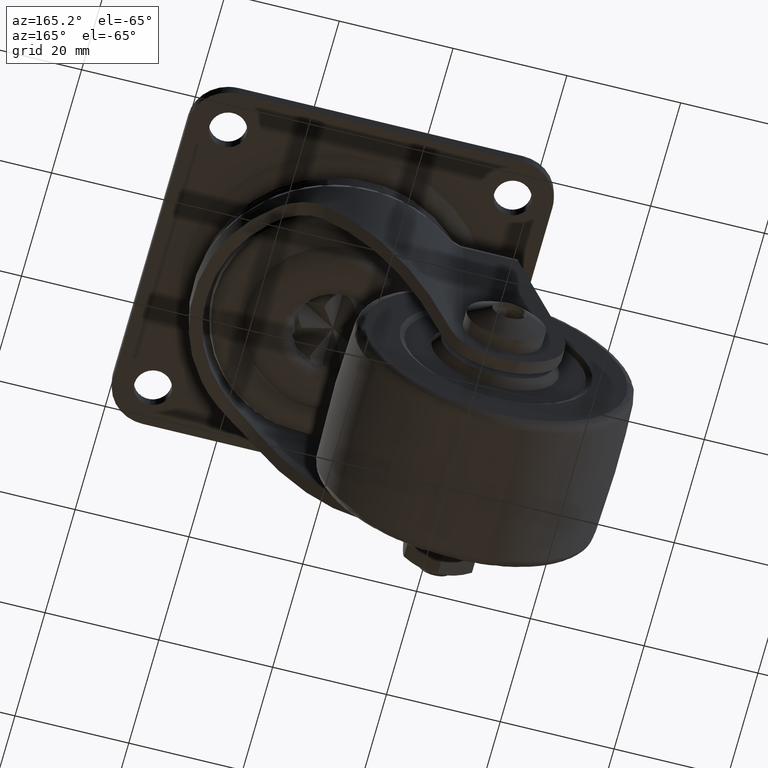
[diagram: clean part render]
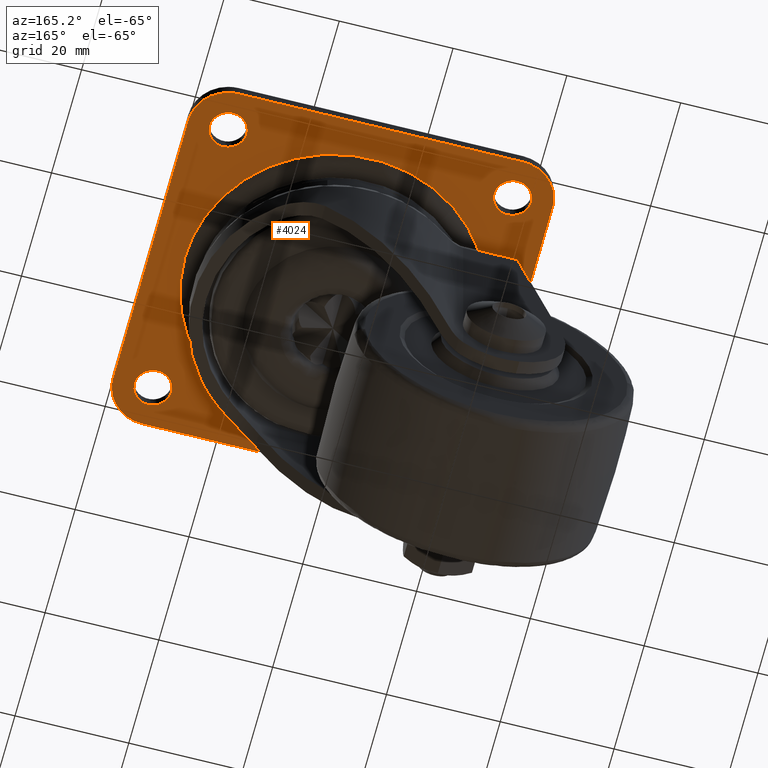
[diagram: same view with one face highlighted and labeled with its STEP entity id]
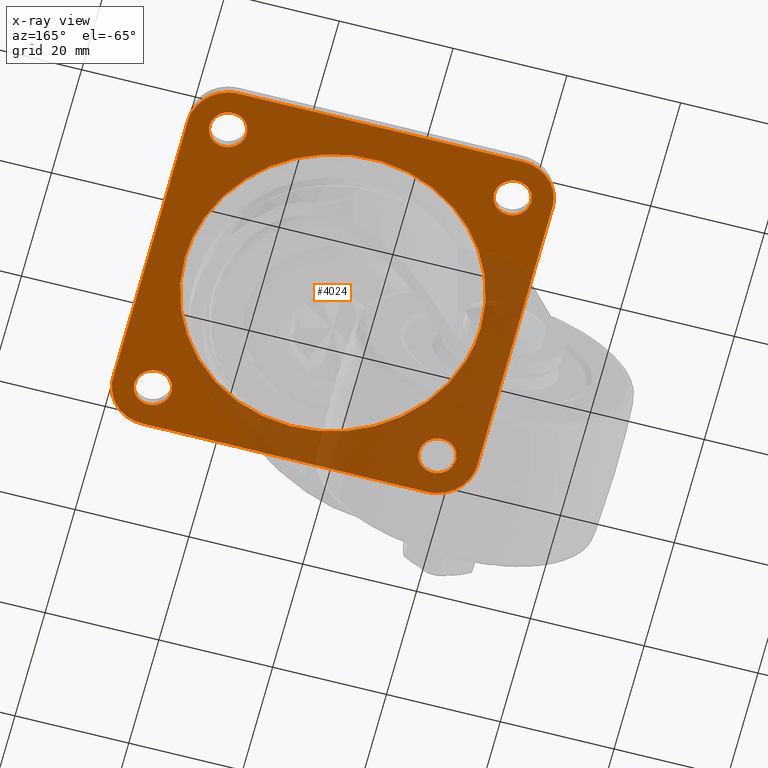
[diagram: x-ray of the same camera — body ghosted, the highlighted face saturated]
A machine part, auxiliary view. The second image highlights one B-rep face of the part: STEP entity #4024.
The next image is the same camera in x-ray: the body ghosted, the highlighted face saturated — about 35% of this face is hidden behind the body in this view.
In plain terms, the highlighted face is a freeform B-spline surface patch.
Its self-contained STEP definition (entity closure, byte-faithful):
#2181=CARTESIAN_POINT('',(-24.801592246341560,28.243938094860660,-2.300000000000080));
#2182=VERTEX_POINT('',#2181);
#2188=CARTESIAN_POINT('',(-21.750000000000000,25.0,-2.300000000000080));
#2189=VERTEX_POINT('',#2188);
#2190=CARTESIAN_POINT('',(-21.750000000000000,25.0,-2.300000000000080));
#2191=CARTESIAN_POINT('',(-21.750000000000007,28.057294717122197,-2.300000000000080));
#2192=CARTESIAN_POINT('',(-24.801592246341563,28.243938094860660,-2.300000000000080));
#2200=(BOUNDED_CURVE()B_SPLINE_CURVE(2,(#2190,#2191,#2192),.UNSPECIFIED.,.F.,.U.)B_SPLINE_CURVE_WITH_KNOTS((3,3),(0.500000000000000,0.739332962223868),.UNSPECIFIED.)CURVE()GEOMETRIC_REPRESENTATION_ITEM()RATIONAL_B_SPLINE_CURVE((1.0,0.719603993304371,0.976072041634410))REPRESENTATION_ITEM(''));
#2201=EDGE_CURVE('',#2189,#2182,#2200,.T.);
#2203=CARTESIAN_POINT('',(-25.383611262661852,21.772719039321348,-2.300000000000080));
#2204=VERTEX_POINT('',#2203);
#2205=CARTESIAN_POINT('',(-25.383611262661855,21.772719039321348,-2.300000000000080));
#2206=CARTESIAN_POINT('',(-25.192478388896387,21.750000000000004,-2.300000000000079));
#2207=CARTESIAN_POINT('',(-25.0,21.750000000000000,-2.300000000000080));
#2208=CARTESIAN_POINT('',(-21.750000000000004,21.750000000000004,-2.300000000000081));
#2209=CARTESIAN_POINT('',(-21.750000000000000,25.0,-2.300000000000080));
#2217=(BOUNDED_CURVE()B_SPLINE_CURVE(2,(#2205,#2206,#2207,#2208,#2209),.UNSPECIFIED.,.F.,.U.)B_SPLINE_CURVE_WITH_KNOTS((3,2,3),(0.229562473512776,0.250000000000000,0.500000000000000),.UNSPECIFIED.)CURVE()GEOMETRIC_REPRESENTATION_ITEM()RATIONAL_B_SPLINE_CURVE((0.956026754182264,0.976055948330287,1.0,0.707106781186547,1.0))REPRESENTATION_ITEM(''));
#2218=EDGE_CURVE('',#2204,#2189,#2217,.T.);
#2262=CARTESIAN_POINT('',(-28.250000000000000,25.0,-2.300000000000080));
#2263=VERTEX_POINT('',#2262);
#2264=CARTESIAN_POINT('',(-28.250000000000000,25.0,-2.300000000000080));
#2265=CARTESIAN_POINT('',(-28.250000000000000,22.113432790707396,-2.300000000000081));
#2266=CARTESIAN_POINT('',(-25.383611262661855,21.772719039321341,-2.300000000000080));
#2274=(BOUNDED_CURVE()B_SPLINE_CURVE(2,(#2264,#2265,#2266),.UNSPECIFIED.,.F.,.U.)B_SPLINE_CURVE_WITH_KNOTS((3,3),(0.0,0.229562473512776),.UNSPECIFIED.)CURVE()GEOMETRIC_REPRESENTATION_ITEM()RATIONAL_B_SPLINE_CURVE((1.0,0.731050832856260,0.956026754182264))REPRESENTATION_ITEM(''));
#2275=EDGE_CURVE('',#2263,#2204,#2274,.T.);
#2277=CARTESIAN_POINT('',(-24.801592246341567,28.243938094860660,-2.300000000000080));
#2278=CARTESIAN_POINT('',(-24.900703519108951,28.250000000000004,-2.300000000000079));
#2279=CARTESIAN_POINT('',(-25.0,28.250000000000000,-2.300000000000080));
#2280=CARTESIAN_POINT('',(-28.250000000000004,28.250000000000004,-2.300000000000081));
#2281=CARTESIAN_POINT('',(-28.250000000000000,25.0,-2.300000000000080));
#2289=(BOUNDED_CURVE()B_SPLINE_CURVE(2,(#2277,#2278,#2279,#2280,#2281),.UNSPECIFIED.,.F.,.U.)B_SPLINE_CURVE_WITH_KNOTS((3,2,3),(0.739332962223867,0.750000000000000,1.0),.UNSPECIFIED.)CURVE()GEOMETRIC_REPRESENTATION_ITEM()RATIONAL_B_SPLINE_CURVE((0.976072041634408,0.987502787882175,1.0,0.707106781186547,1.0))REPRESENTATION_ITEM(''));
#2290=EDGE_CURVE('',#2182,#2263,#2289,.T.);
#2367=CARTESIAN_POINT('',(25.198407753658440,28.243938094860660,-2.300000000000080));
#2368=VERTEX_POINT('',#2367);
#2374=CARTESIAN_POINT('',(28.250000000000000,25.0,-2.300000000000080));
#2375=VERTEX_POINT('',#2374);
#2376=CARTESIAN_POINT('',(28.250000000000000,25.0,-2.300000000000080));
#2377=CARTESIAN_POINT('',(28.249999999999989,28.057294717122197,-2.300000000000080));
#2378=CARTESIAN_POINT('',(25.198407753658440,28.243938094860660,-2.300000000000080));
#2386=(BOUNDED_CURVE()B_SPLINE_CURVE(2,(#2376,#2377,#2378),.UNSPECIFIED.,.F.,.U.)B_SPLINE_CURVE_WITH_KNOTS((3,3),(0.500000000000000,0.739332962223868),.UNSPECIFIED.)CURVE()GEOMETRIC_REPRESENTATION_ITEM()RATIONAL_B_SPLINE_CURVE((1.0,0.719603993304371,0.976072041634410))REPRESENTATION_ITEM(''));
#2387=EDGE_CURVE('',#2375,#2368,#2386,.T.);
#2389=CARTESIAN_POINT('',(24.616388737338141,21.772719039321348,-2.300000000000080));
#2390=VERTEX_POINT('',#2389);
#2391=CARTESIAN_POINT('',(24.616388737338148,21.772719039321352,-2.300000000000080));
#2392=CARTESIAN_POINT('',(24.807521611103617,21.750000000000007,-2.300000000000080));
#2393=CARTESIAN_POINT('',(25.0,21.750000000000000,-2.300000000000080));
#2394=CARTESIAN_POINT('',(28.250000000000004,21.750000000000004,-2.300000000000081));
#2395=CARTESIAN_POINT('',(28.250000000000000,25.0,-2.300000000000080));
#2403=(BOUNDED_CURVE()B_SPLINE_CURVE(2,(#2391,#2392,#2393,#2394,#2395),.UNSPECIFIED.,.F.,.U.)B_SPLINE_CURVE_WITH_KNOTS((3,2,3),(0.229562473512775,0.250000000000000,0.500000000000000),.UNSPECIFIED.)CURVE()GEOMETRIC_REPRESENTATION_ITEM()RATIONAL_B_SPLINE_CURVE((0.956026754182262,0.976055948330286,1.0,0.707106781186547,1.0))REPRESENTATION_ITEM(''));
#2404=EDGE_CURVE('',#2390,#2375,#2403,.T.);
#2448=CARTESIAN_POINT('',(21.750000000000000,25.0,-2.300000000000080));
#2449=VERTEX_POINT('',#2448);
#2450=CARTESIAN_POINT('',(21.750000000000000,25.0,-2.300000000000080));
#2451=CARTESIAN_POINT('',(21.750000000000000,22.113432790707400,-2.300000000000080));
#2452=CARTESIAN_POINT('',(24.616388737338141,21.772719039321345,-2.300000000000079));
#2460=(BOUNDED_CURVE()B_SPLINE_CURVE(2,(#2450,#2451,#2452),.UNSPECIFIED.,.F.,.U.)B_SPLINE_CURVE_WITH_KNOTS((3,3),(0.0,0.229562473512775),.UNSPECIFIED.)CURVE()GEOMETRIC_REPRESENTATION_ITEM()RATIONAL_B_SPLINE_CURVE((1.0,0.731050832856261,0.956026754182263))REPRESENTATION_ITEM(''));
#2461=EDGE_CURVE('',#2449,#2390,#2460,.T.);
#2463=CARTESIAN_POINT('',(25.198407753658440,28.243938094860663,-2.300000000000080));
#2464=CARTESIAN_POINT('',(25.099296480891041,28.250000000000004,-2.300000000000080));
#2465=CARTESIAN_POINT('',(25.0,28.250000000000000,-2.300000000000080));
#2466=CARTESIAN_POINT('',(21.750000000000004,28.250000000000004,-2.300000000000081));
#2467=CARTESIAN_POINT('',(21.750000000000000,25.0,-2.300000000000080));
#2475=(BOUNDED_CURVE()B_SPLINE_CURVE(2,(#2463,#2464,#2465,#2466,#2467),.UNSPECIFIED.,.F.,.U.)B_SPLINE_CURVE_WITH_KNOTS((3,2,3),(0.739332962223868,0.750000000000000,1.0),.UNSPECIFIED.)CURVE()GEOMETRIC_REPRESENTATION_ITEM()RATIONAL_B_SPLINE_CURVE((0.976072041634408,0.987502787882175,1.0,0.707106781186547,1.0))REPRESENTATION_ITEM(''));
#2476=EDGE_CURVE('',#2368,#2449,#2475,.T.);
#2553=CARTESIAN_POINT('',(-24.801592246341560,-21.756061905139340,-2.300000000000080));
#2554=VERTEX_POINT('',#2553);
#2560=CARTESIAN_POINT('',(-21.750000000000000,-25.0,-2.300000000000080));
#2561=VERTEX_POINT('',#2560);
#2562=CARTESIAN_POINT('',(-21.750000000000000,-25.0,-2.300000000000080));
#2563=CARTESIAN_POINT('',(-21.750000000000007,-21.942705282877807,-2.300000000000080));
#2564=CARTESIAN_POINT('',(-24.801592246341563,-21.756061905139344,-2.300000000000080));
#2572=(BOUNDED_CURVE()B_SPLINE_CURVE(2,(#2562,#2563,#2564),.UNSPECIFIED.,.F.,.U.)B_SPLINE_CURVE_WITH_KNOTS((3,3),(0.500000000000000,0.739332962223868),.UNSPECIFIED.)CURVE()GEOMETRIC_REPRESENTATION_ITEM()RATIONAL_B_SPLINE_CURVE((1.0,0.719603993304371,0.976072041634410))REPRESENTATION_ITEM(''));
#2573=EDGE_CURVE('',#2561,#2554,#2572,.T.);
#2575=CARTESIAN_POINT('',(-25.383611262661852,-28.227280960678659,-2.300000000000080));
#2576=VERTEX_POINT('',#2575);
#2577=CARTESIAN_POINT('',(-25.383611262661852,-28.227280960678666,-2.300000000000080));
#2578=CARTESIAN_POINT('',(-25.192478388896394,-28.250000000000004,-2.300000000000079));
#2579=CARTESIAN_POINT('',(-25.0,-28.250000000000000,-2.300000000000080));
#2580=CARTESIAN_POINT('',(-21.750000000000004,-28.250000000000004,-2.300000000000081));
#2581=CARTESIAN_POINT('',(-21.750000000000000,-25.0,-2.300000000000080));
#2589=(BOUNDED_CURVE()B_SPLINE_CURVE(2,(#2577,#2578,#2579,#2580,#2581),.UNSPECIFIED.,.F.,.U.)B_SPLINE_CURVE_WITH_KNOTS((3,2,3),(0.229562473512776,0.250000000000000,0.500000000000000),.UNSPECIFIED.)CURVE()GEOMETRIC_REPRESENTATION_ITEM()RATIONAL_B_SPLINE_CURVE((0.956026754182263,0.976055948330287,1.0,0.707106781186547,1.0))REPRESENTATION_ITEM(''));
#2590=EDGE_CURVE('',#2576,#2561,#2589,.T.);
#2634=CARTESIAN_POINT('',(-28.250000000000000,-25.0,-2.300000000000080));
#2635=VERTEX_POINT('',#2634);
#2636=CARTESIAN_POINT('',(-28.250000000000000,-25.0,-2.300000000000080));
#2637=CARTESIAN_POINT('',(-28.250000000000000,-27.886567209292604,-2.300000000000080));
#2638=CARTESIAN_POINT('',(-25.383611262661855,-28.227280960678655,-2.300000000000079));
#2646=(BOUNDED_CURVE()B_SPLINE_CURVE(2,(#2636,#2637,#2638),.UNSPECIFIED.,.F.,.U.)B_SPLINE_CURVE_WITH_KNOTS((3,3),(0.0,0.229562473512776),.UNSPECIFIED.)CURVE()GEOMETRIC_REPRESENTATION_ITEM()RATIONAL_B_SPLINE_CURVE((1.0,0.731050832856261,0.956026754182263))REPRESENTATION_ITEM(''));
#2647=EDGE_CURVE('',#2635,#2576,#2646,.T.);
#2649=CARTESIAN_POINT('',(-24.801592246341567,-21.756061905139340,-2.300000000000080));
#2650=CARTESIAN_POINT('',(-24.900703519108951,-21.750000000000000,-2.300000000000079));
#2651=CARTESIAN_POINT('',(-25.0,-21.750000000000000,-2.300000000000080));
#2652=CARTESIAN_POINT('',(-28.250000000000004,-21.750000000000004,-2.300000000000081));
#2653=CARTESIAN_POINT('',(-28.250000000000000,-25.0,-2.300000000000080));
#2661=(BOUNDED_CURVE()B_SPLINE_CURVE(2,(#2649,#2650,#2651,#2652,#2653),.UNSPECIFIED.,.F.,.U.)B_SPLINE_CURVE_WITH_KNOTS((3,2,3),(0.739332962223867,0.750000000000000,1.0),.UNSPECIFIED.)CURVE()GEOMETRIC_REPRESENTATION_ITEM()RATIONAL_B_SPLINE_CURVE((0.976072041634408,0.987502787882175,1.0,0.707106781186547,1.0))REPRESENTATION_ITEM(''));
#2662=EDGE_CURVE('',#2554,#2635,#2661,.T.);
#2739=CARTESIAN_POINT('',(25.198407753658440,-21.756061905139340,-2.300000000000080));
#2740=VERTEX_POINT('',#2739);
#2746=CARTESIAN_POINT('',(28.250000000000000,-25.0,-2.300000000000080));
#2747=VERTEX_POINT('',#2746);
#2748=CARTESIAN_POINT('',(28.250000000000000,-25.0,-2.300000000000080));
#2749=CARTESIAN_POINT('',(28.249999999999989,-21.942705282877807,-2.300000000000080));
#2750=CARTESIAN_POINT('',(25.198407753658440,-21.756061905139344,-2.300000000000080));
#2758=(BOUNDED_CURVE()B_SPLINE_CURVE(2,(#2748,#2749,#2750),.UNSPECIFIED.,.F.,.U.)B_SPLINE_CURVE_WITH_KNOTS((3,3),(0.500000000000000,0.739332962223868),.UNSPECIFIED.)CURVE()GEOMETRIC_REPRESENTATION_ITEM()RATIONAL_B_SPLINE_CURVE((1.0,0.719603993304371,0.976072041634410))REPRESENTATION_ITEM(''));
#2759=EDGE_CURVE('',#2747,#2740,#2758,.T.);
#2761=CARTESIAN_POINT('',(24.616388737338148,-28.227280960678659,-2.300000000000080));
#2762=VERTEX_POINT('',#2761);
#2763=CARTESIAN_POINT('',(24.616388737338148,-28.227280960678655,-2.300000000000079));
#2764=CARTESIAN_POINT('',(24.807521611103617,-28.250000000000004,-2.300000000000079));
#2765=CARTESIAN_POINT('',(25.0,-28.250000000000000,-2.300000000000080));
#2766=CARTESIAN_POINT('',(28.250000000000004,-28.250000000000004,-2.300000000000081));
#2767=CARTESIAN_POINT('',(28.250000000000000,-25.0,-2.300000000000080));
#2775=(BOUNDED_CURVE()B_SPLINE_CURVE(2,(#2763,#2764,#2765,#2766,#2767),.UNSPECIFIED.,.F.,.U.)B_SPLINE_CURVE_WITH_KNOTS((3,2,3),(0.229562473512776,0.250000000000000,0.500000000000000),.UNSPECIFIED.)CURVE()GEOMETRIC_REPRESENTATION_ITEM()RATIONAL_B_SPLINE_CURVE((0.956026754182263,0.976055948330287,1.0,0.707106781186547,1.0))REPRESENTATION_ITEM(''));
#2776=EDGE_CURVE('',#2762,#2747,#2775,.T.);
#2820=CARTESIAN_POINT('',(21.750000000000000,-25.0,-2.300000000000080));
#2821=VERTEX_POINT('',#2820);
#2822=CARTESIAN_POINT('',(21.750000000000000,-25.0,-2.300000000000080));
#2823=CARTESIAN_POINT('',(21.750000000000007,-27.886567209292615,-2.300000000000081));
#2824=CARTESIAN_POINT('',(24.616388737338148,-28.227280960678655,-2.300000000000079));
#2832=(BOUNDED_CURVE()B_SPLINE_CURVE(2,(#2822,#2823,#2824),.UNSPECIFIED.,.F.,.U.)B_SPLINE_CURVE_WITH_KNOTS((3,3),(0.0,0.229562473512776),.UNSPECIFIED.)CURVE()GEOMETRIC_REPRESENTATION_ITEM()RATIONAL_B_SPLINE_CURVE((1.0,0.731050832856261,0.956026754182263))REPRESENTATION_ITEM(''));
#2833=EDGE_CURVE('',#2821,#2762,#2832,.T.);
#2835=CARTESIAN_POINT('',(25.198407753658440,-21.756061905139337,-2.300000000000080));
#2836=CARTESIAN_POINT('',(25.099296480891045,-21.750000000000007,-2.300000000000080));
#2837=CARTESIAN_POINT('',(25.0,-21.750000000000000,-2.300000000000080));
#2838=CARTESIAN_POINT('',(21.750000000000004,-21.750000000000004,-2.300000000000081));
#2839=CARTESIAN_POINT('',(21.750000000000000,-25.0,-2.300000000000080));
#2847=(BOUNDED_CURVE()B_SPLINE_CURVE(2,(#2835,#2836,#2837,#2838,#2839),.UNSPECIFIED.,.F.,.U.)B_SPLINE_CURVE_WITH_KNOTS((3,2,3),(0.739332962223867,0.750000000000000,1.0),.UNSPECIFIED.)CURVE()GEOMETRIC_REPRESENTATION_ITEM()RATIONAL_B_SPLINE_CURVE((0.976072041634408,0.987502787882175,1.0,0.707106781186547,1.0))REPRESENTATION_ITEM(''));
#2848=EDGE_CURVE('',#2740,#2821,#2847,.T.);
#3557=CARTESIAN_POINT('',(19.705968120511720,16.960979347694160,-2.300000000006841));
#3558=VERTEX_POINT('',#3557);
#3572=CARTESIAN_POINT('',(26.0,0.0,-2.300000000000095));
#3573=VERTEX_POINT('',#3572);
#3574=CARTESIAN_POINT('',(19.705968120511724,16.960979347694160,-2.300000000006842));
#3575=CARTESIAN_POINT('',(26.000000000000007,9.648312489026063,-2.300000000000095));
#3576=CARTESIAN_POINT('',(26.0,0.0,-2.300000000000095));
#3584=(BOUNDED_CURVE()B_SPLINE_CURVE(2,(#3574,#3575,#3576),.UNSPECIFIED.,.F.,.U.)B_SPLINE_CURVE_WITH_KNOTS((3,3),(0.386280135075512,0.500000000000000),.UNSPECIFIED.)CURVE()GEOMETRIC_REPRESENTATION_ITEM()RATIONAL_B_SPLINE_CURVE((0.854745971619596,0.866768890876942,1.0))REPRESENTATION_ITEM(''));
#3585=EDGE_CURVE('',#3558,#3573,#3584,.T.);
#3587=CARTESIAN_POINT('',(-26.0,0.0,-2.300000000000095));
#3588=VERTEX_POINT('',#3587);
#3589=CARTESIAN_POINT('',(26.0,0.0,-2.300000000000095));
#3590=CARTESIAN_POINT('',(26.000000000000007,-26.000000000000007,-2.300000000000094));
#3591=CARTESIAN_POINT('',(0.0,-26.0,-2.300000000000095));
#3592=CARTESIAN_POINT('',(-26.000000000000007,-26.000000000000007,-2.300000000000094));
#3593=CARTESIAN_POINT('',(-26.0,0.0,-2.300000000000095));
#3601=(BOUNDED_CURVE()B_SPLINE_CURVE(2,(#3589,#3590,#3591,#3592,#3593),.UNSPECIFIED.,.F.,.U.)B_SPLINE_CURVE_WITH_KNOTS((3,2,3),(0.500000000000000,0.750000000000000,1.0),.UNSPECIFIED.)CURVE()GEOMETRIC_REPRESENTATION_ITEM()RATIONAL_B_SPLINE_CURVE((1.0,0.707106781186547,1.0,0.707106781186547,1.0))REPRESENTATION_ITEM(''));
#3602=EDGE_CURVE('',#3573,#3588,#3601,.T.);
#3604=CARTESIAN_POINT('',(-15.806187739958229,20.643750364663688,-2.300000000153583));
#3605=VERTEX_POINT('',#3604);
#3606=CARTESIAN_POINT('',(-26.0,0.0,-2.300000000000095));
#3607=CARTESIAN_POINT('',(-25.999999999999996,12.838709734112415,-2.300000000000095));
#3608=CARTESIAN_POINT('',(-15.806187739958229,20.643750364663688,-2.300000000153583));
#3616=(BOUNDED_CURVE()B_SPLINE_CURVE(2,(#3606,#3607,#3608),.UNSPECIFIED.,.F.,.U.)B_SPLINE_CURVE_WITH_KNOTS((3,3),(0.0,0.144938183777107),.UNSPECIFIED.)CURVE()GEOMETRIC_REPRESENTATION_ITEM()RATIONAL_B_SPLINE_CURVE((1.0,0.830194355298190,0.857279284501828))REPRESENTATION_ITEM(''));
#3617=EDGE_CURVE('',#3588,#3605,#3616,.T.);
#3700=CARTESIAN_POINT('',(-15.806187739958229,20.643750364663688,-2.300000000153583));
#3701=CARTESIAN_POINT('',(-8.810631178422627,26.0,-2.300000000000095));
#3702=CARTESIAN_POINT('',(0.0,26.0,-2.300000000000095));
#3703=CARTESIAN_POINT('',(11.926058924000907,25.999999999999996,-2.300000000000094));
#3704=CARTESIAN_POINT('',(19.705968120511724,16.960979347694160,-2.300000000006842));
#3712=(BOUNDED_CURVE()B_SPLINE_CURVE(2,(#3700,#3701,#3702,#3703,#3704),.UNSPECIFIED.,.F.,.U.)B_SPLINE_CURVE_WITH_KNOTS((3,2,3),(0.144938183777107,0.250000000000000,0.386280135075512),.UNSPECIFIED.)CURVE()GEOMETRIC_REPRESENTATION_ITEM()RATIONAL_B_SPLINE_CURVE((0.857279284501828,0.876912425888358,1.0,0.840337890309605,0.854745971619596))REPRESENTATION_ITEM(''));
#3713=EDGE_CURVE('',#3605,#3558,#3712,.T.);
#3899=CARTESIAN_POINT('',(-35.196799875955577,35.196799875955577,-2.300000000000095));
#3900=CARTESIAN_POINT('',(35.196801592569351,35.196799875955577,-2.300000000000095));
#3901=CARTESIAN_POINT('',(-35.196799875955577,-35.196801592569351,-2.300000000000095));
#3902=CARTESIAN_POINT('',(35.196801592569351,-35.196801592569351,-2.300000000000095));
#3903=B_SPLINE_SURFACE_WITH_KNOTS('',1,1,((#3899,#3901),(#3900,#3902)),.UNSPECIFIED.,.F.,.F.,.U.,(2,2),(2,2),(0.0,70.393601468524935),(0.0,70.393601468524935),.UNSPECIFIED.);
#3904=CARTESIAN_POINT('',(25.0,32.0,-2.300000000000080));
#3905=VERTEX_POINT('',#3904);
#3906=CARTESIAN_POINT('',(-25.0,32.0,-2.300000000000080));
#3907=VERTEX_POINT('',#3906);
#3908=CARTESIAN_POINT('',(25.0,32.0,-2.300000000000080));
#3909=CARTESIAN_POINT('',(-25.0,32.0,-2.300000000000080));
#3910=QUASI_UNIFORM_CURVE('',1,(#3908,#3909),.UNSPECIFIED.,.F.,.U.);
#3911=EDGE_CURVE('',#3905,#3907,#3910,.T.);
#3912=ORIENTED_EDGE('',*,*,#3911,.F.);
#3913=CARTESIAN_POINT('',(32.0,25.0,-2.300000000000080));
#3914=VERTEX_POINT('',#3913);
#3915=CARTESIAN_POINT('',(32.0,25.0,-2.300000000000080));
#3916=CARTESIAN_POINT('',(32.0,32.0,-2.300000000000081));
#3917=CARTESIAN_POINT('',(25.0,32.0,-2.300000000000080));
#3925=(BOUNDED_CURVE()B_SPLINE_CURVE(2,(#3915,#3916,#3917),.UNSPECIFIED.,.F.,.U.)CURVE()GEOMETRIC_REPRESENTATION_ITEM()QUASI_UNIFORM_CURVE()RATIONAL_B_SPLINE_CURVE((1.0,0.707106781186547,1.0))REPRESENTATION_ITEM(''));
#3926=EDGE_CURVE('',#3914,#3905,#3925,.T.);
#3927=ORIENTED_EDGE('',*,*,#3926,.F.);
#3928=CARTESIAN_POINT('',(32.0,-25.0,-2.300000000000080));
#3929=VERTEX_POINT('',#3928);
#3930=CARTESIAN_POINT('',(32.0,-25.0,-2.300000000000080));
#3931=CARTESIAN_POINT('',(32.0,25.0,-2.300000000000080));
#3932=QUASI_UNIFORM_CURVE('',1,(#3930,#3931),.UNSPECIFIED.,.F.,.U.);
#3933=EDGE_CURVE('',#3929,#3914,#3932,.T.);
#3934=ORIENTED_EDGE('',*,*,#3933,.F.);
#3935=CARTESIAN_POINT('',(25.0,-32.0,-2.300000000000080));
#3936=VERTEX_POINT('',#3935);
#3937=CARTESIAN_POINT('',(25.0,-32.0,-2.300000000000080));
#3938=CARTESIAN_POINT('',(32.0,-32.0,-2.300000000000081));
#3939=CARTESIAN_POINT('',(32.0,-25.0,-2.300000000000080));
#3947=(BOUNDED_CURVE()B_SPLINE_CURVE(2,(#3937,#3938,#3939),.UNSPECIFIED.,.F.,.U.)CURVE()GEOMETRIC_REPRESENTATION_ITEM()QUASI_UNIFORM_CURVE()RATIONAL_B_SPLINE_CURVE((1.0,0.707106781186547,1.0))REPRESENTATION_ITEM(''));
#3948=EDGE_CURVE('',#3936,#3929,#3947,.T.);
#3949=ORIENTED_EDGE('',*,*,#3948,.F.);
#3950=CARTESIAN_POINT('',(-25.0,-32.0,-2.300000000000080));
#3951=VERTEX_POINT('',#3950);
#3952=CARTESIAN_POINT('',(-25.0,-32.0,-2.300000000000080));
#3953=CARTESIAN_POINT('',(25.0,-32.0,-2.300000000000080));
#3954=QUASI_UNIFORM_CURVE('',1,(#3952,#3953),.UNSPECIFIED.,.F.,.U.);
#3955=EDGE_CURVE('',#3951,#3936,#3954,.T.);
#3956=ORIENTED_EDGE('',*,*,#3955,.F.);
#3957=CARTESIAN_POINT('',(-32.0,-25.0,-2.300000000000080));
#3958=VERTEX_POINT('',#3957);
#3959=CARTESIAN_POINT('',(-32.0,-25.0,-2.300000000000080));
#3960=CARTESIAN_POINT('',(-32.0,-32.0,-2.300000000000081));
#3961=CARTESIAN_POINT('',(-25.0,-32.0,-2.300000000000080));
#3969=(BOUNDED_CURVE()B_SPLINE_CURVE(2,(#3959,#3960,#3961),.UNSPECIFIED.,.F.,.U.)CURVE()GEOMETRIC_REPRESENTATION_ITEM()QUASI_UNIFORM_CURVE()RATIONAL_B_SPLINE_CURVE((1.0,0.707106781186547,1.0))REPRESENTATION_ITEM(''));
#3970=EDGE_CURVE('',#3958,#3951,#3969,.T.);
#3971=ORIENTED_EDGE('',*,*,#3970,.F.);
#3972=CARTESIAN_POINT('',(-32.0,25.0,-2.300000000000080));
#3973=VERTEX_POINT('',#3972);
#3974=CARTESIAN_POINT('',(-32.0,25.0,-2.300000000000080));
#3975=CARTESIAN_POINT('',(-32.0,-25.0,-2.300000000000080));
#3976=QUASI_UNIFORM_CURVE('',1,(#3974,#3975),.UNSPECIFIED.,.F.,.U.);
#3977=EDGE_CURVE('',#3973,#3958,#3976,.T.);
#3978=ORIENTED_EDGE('',*,*,#3977,.F.);
#3979=CARTESIAN_POINT('',(-25.0,32.0,-2.300000000000080));
#3980=CARTESIAN_POINT('',(-32.0,32.0,-2.300000000000081));
#3981=CARTESIAN_POINT('',(-32.0,25.0,-2.300000000000080));
#3989=(BOUNDED_CURVE()B_SPLINE_CURVE(2,(#3979,#3980,#3981),.UNSPECIFIED.,.F.,.U.)CURVE()GEOMETRIC_REPRESENTATION_ITEM()QUASI_UNIFORM_CURVE()RATIONAL_B_SPLINE_CURVE((1.0,0.707106781186547,1.0))REPRESENTATION_ITEM(''));
#3990=EDGE_CURVE('',#3907,#3973,#3989,.T.);
#3991=ORIENTED_EDGE('',*,*,#3990,.F.);
#3992=EDGE_LOOP('',(#3912,#3927,#3934,#3949,#3956,#3971,#3978,#3991));
#3993=FACE_OUTER_BOUND('',#3992,.T.);
#3994=ORIENTED_EDGE('',*,*,#3602,.F.);
#3995=ORIENTED_EDGE('',*,*,#3585,.F.);
#3996=ORIENTED_EDGE('',*,*,#3713,.F.);
#3997=ORIENTED_EDGE('',*,*,#3617,.F.);
#3998=EDGE_LOOP('',(#3994,#3995,#3996,#3997));
#3999=FACE_BOUND('',#3998,.T.);
#4000=ORIENTED_EDGE('',*,*,#2759,.T.);
#4001=ORIENTED_EDGE('',*,*,#2848,.T.);
#4002=ORIENTED_EDGE('',*,*,#2833,.T.);
#4003=ORIENTED_EDGE('',*,*,#2776,.T.);
#4004=EDGE_LOOP('',(#4000,#4001,#4002,#4003));
#4005=FACE_BOUND('',#4004,.T.);
#4006=ORIENTED_EDGE('',*,*,#2573,.T.);
#4007=ORIENTED_EDGE('',*,*,#2662,.T.);
#4008=ORIENTED_EDGE('',*,*,#2647,.T.);
#4009=ORIENTED_EDGE('',*,*,#2590,.T.);
#4010=EDGE_LOOP('',(#4006,#4007,#4008,#4009));
#4011=FACE_BOUND('',#4010,.T.);
#4012=ORIENTED_EDGE('',*,*,#2387,.T.);
#4013=ORIENTED_EDGE('',*,*,#2476,.T.);
#4014=ORIENTED_EDGE('',*,*,#2461,.T.);
#4015=ORIENTED_EDGE('',*,*,#2404,.T.);
#4016=EDGE_LOOP('',(#4012,#4013,#4014,#4015));
#4017=FACE_BOUND('',#4016,.T.);
#4018=ORIENTED_EDGE('',*,*,#2201,.T.);
#4019=ORIENTED_EDGE('',*,*,#2290,.T.);
#4020=ORIENTED_EDGE('',*,*,#2275,.T.);
#4021=ORIENTED_EDGE('',*,*,#2218,.T.);
#4022=EDGE_LOOP('',(#4018,#4019,#4020,#4021));
#4023=FACE_BOUND('',#4022,.T.);
#4024=ADVANCED_FACE('',(#3993,#3999,#4005,#4011,#4017,#4023),#3903,.T.);